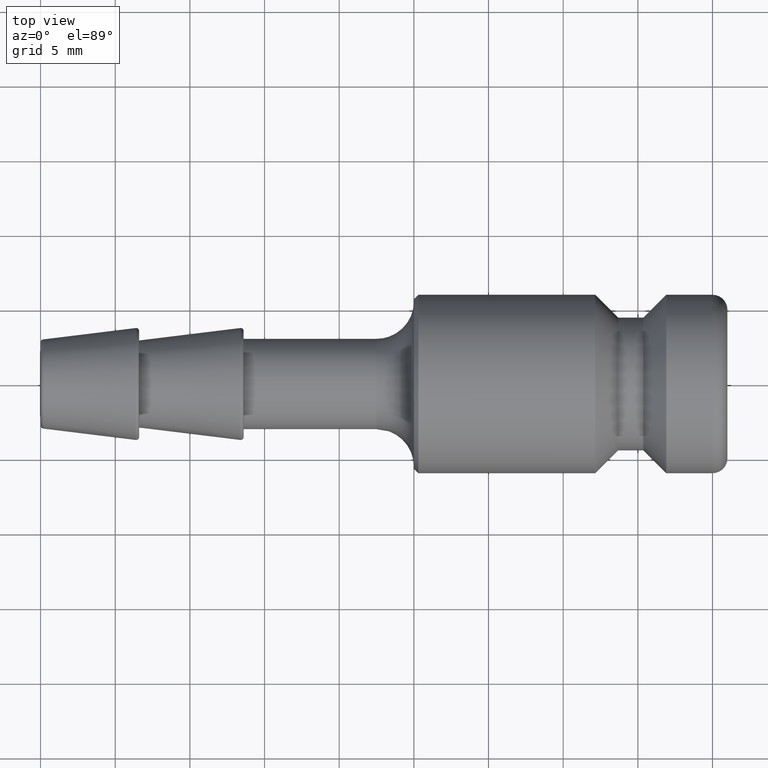
[diagram: clean part render]
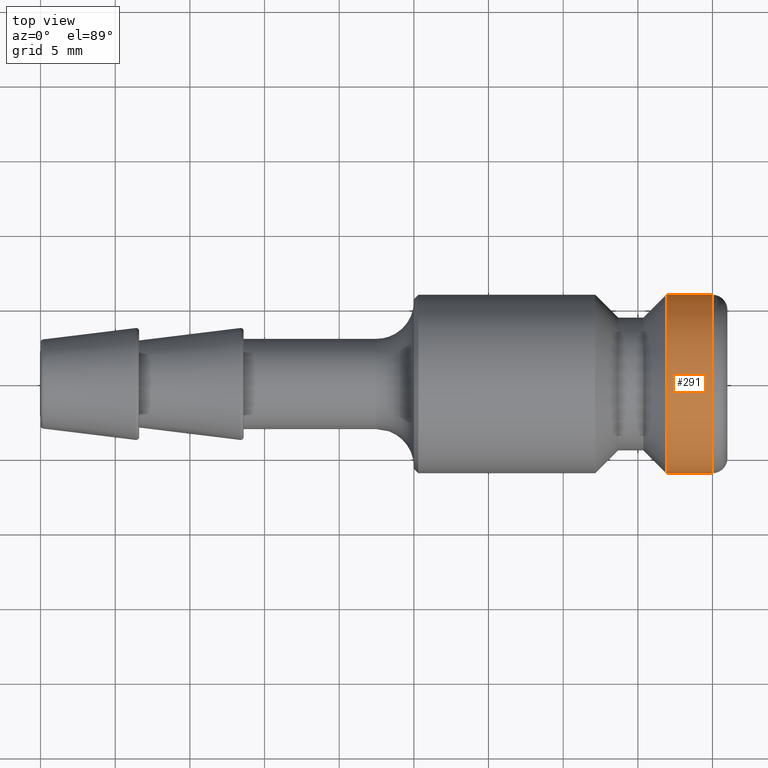
[diagram: same view with one face highlighted and labeled with its STEP entity id]
A machine part, top view. The second image highlights one B-rep face of the part: STEP entity #291.
In plain terms, the highlighted cylindrical surface (bore or boss wall) has radius 5.975 mm, axis along (1, 0, 0).
Its self-contained STEP definition (entity closure, byte-faithful):
#249=CARTESIAN_POINT('',(45.000000000000007,5.975000000000003,0.0));
#250=VERTEX_POINT('',#249);
#251=CARTESIAN_POINT('',(45.000000000000007,5.510911E-015,0.0));
#252=DIRECTION('',(1.0,0.0,0.0));
#253=DIRECTION('',(0.0,-1.0,0.0));
#254=AXIS2_PLACEMENT_3D('',#251,#252,#253);
#255=CIRCLE('',#254,5.974999999999998);
#256=EDGE_CURVE('',#250,#250,#255,.T.);
#272=CARTESIAN_POINT('',(43.950000000000003,5.382323E-015,0.0));
#273=DIRECTION('',(1.0,1.224647E-016,0.0));
#274=DIRECTION('',(0.0,1.0,0.0));
#275=AXIS2_PLACEMENT_3D('',#272,#273,#274);
#276=CYLINDRICAL_SURFACE('',#275,5.974999999999998);
#277=CARTESIAN_POINT('',(41.900000000000006,5.975000000000005,0.0));
#278=VERTEX_POINT('',#277);
#279=CARTESIAN_POINT('',(41.900000000000006,5.131270E-015,0.0));
#280=DIRECTION('',(1.0,0.0,0.0));
#281=DIRECTION('',(0.0,1.0,0.0));
#282=AXIS2_PLACEMENT_3D('',#279,#280,#281);
#283=CIRCLE('',#282,5.975000000000000);
#284=EDGE_CURVE('',#278,#278,#283,.T.);
#285=ORIENTED_EDGE('',*,*,#284,.T.);
#286=EDGE_LOOP('',(#285));
#287=FACE_OUTER_BOUND('',#286,.T.);
#288=ORIENTED_EDGE('',*,*,#256,.F.);
#289=EDGE_LOOP('',(#288));
#290=FACE_BOUND('',#289,.T.);
#291=ADVANCED_FACE('',(#287,#290),#276,.T.);